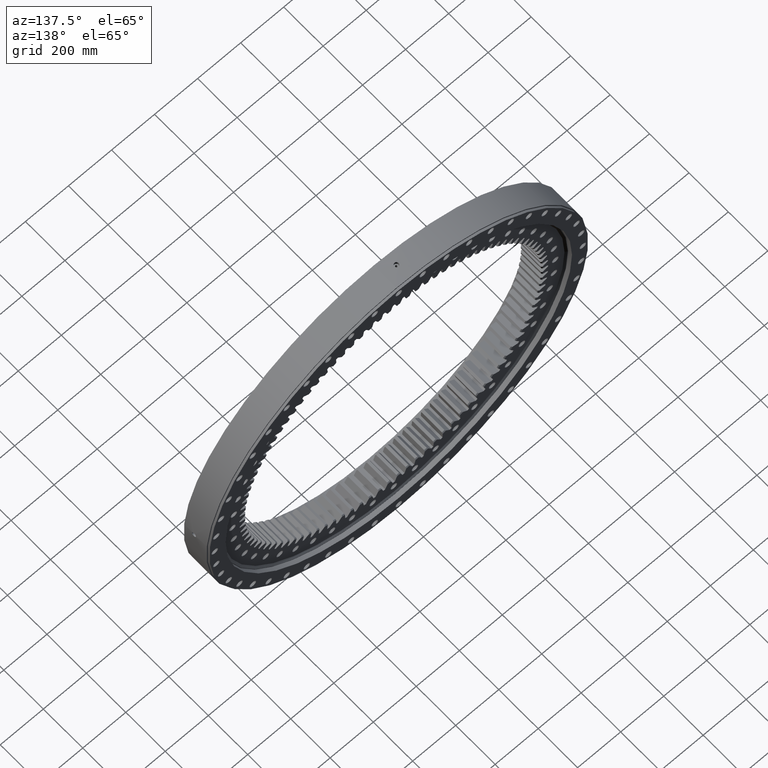
[diagram: clean part render]
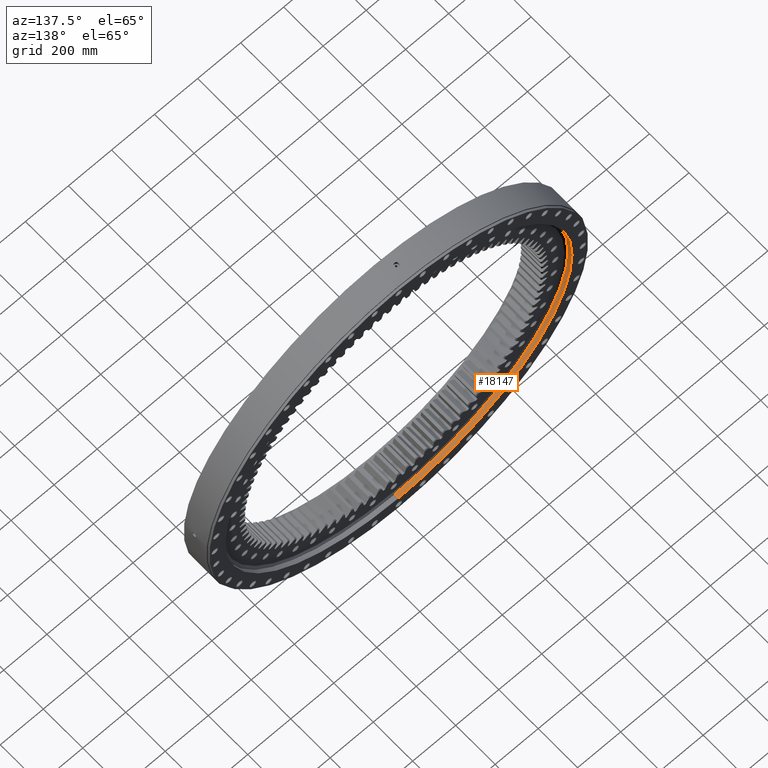
[diagram: same view with one face highlighted and labeled with its STEP entity id]
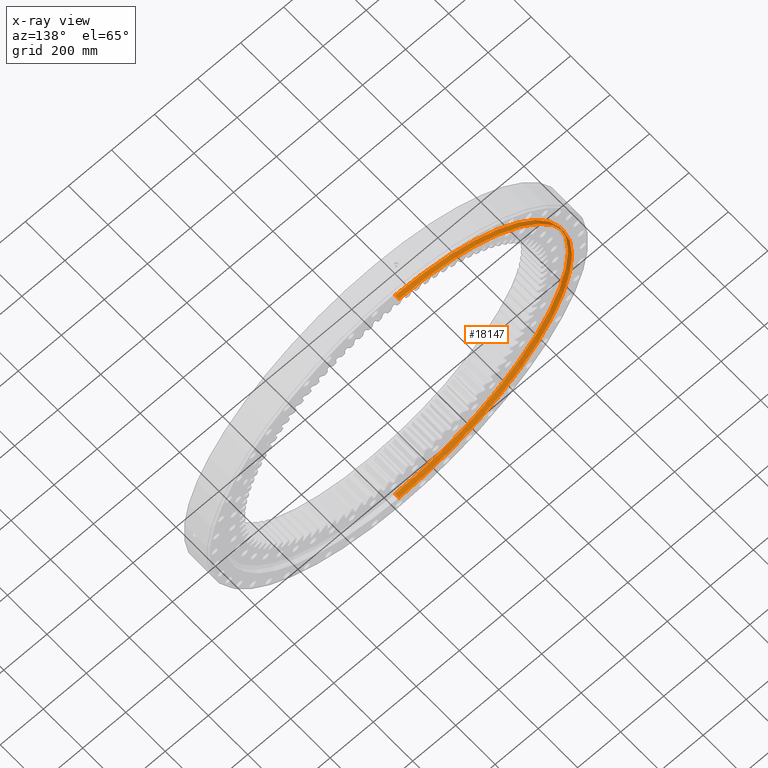
[diagram: x-ray of the same camera — body ghosted, the highlighted face saturated]
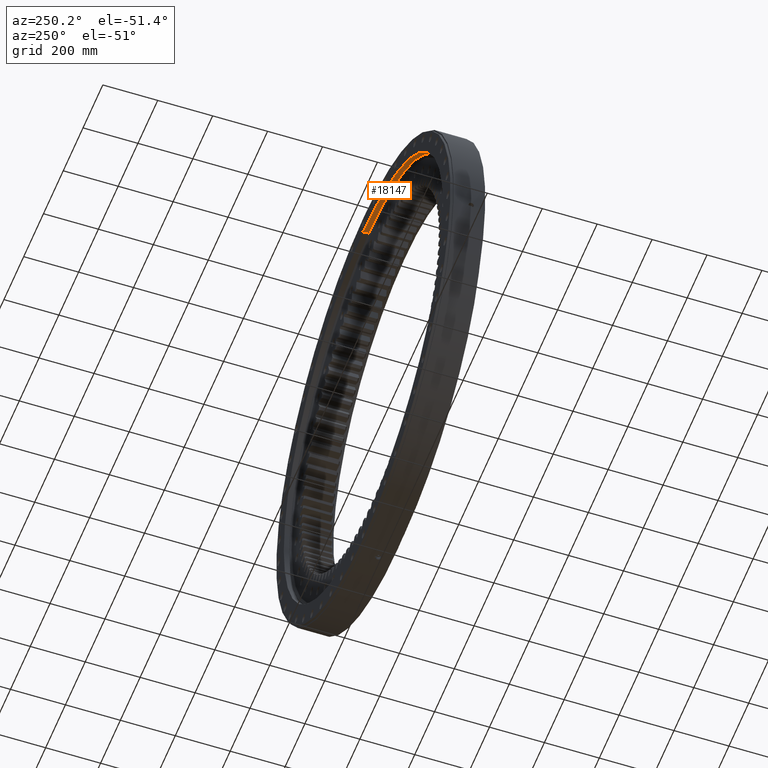
[diagram: same view with one face highlighted and labeled with its STEP entity id]
A machine part, auxiliary view. The second image highlights one B-rep face of the part: STEP entity #18147.
The next image is the same camera in x-ray: the body ghosted, the highlighted face saturated — about 0% of this face is hidden behind the body in this view.
A second angle (auxiliary view) of the same face is appended — the face is thin or edge-on in the first view.
In plain terms, the highlighted cylindrical surface (partial cylindrical patch) has radius 805 mm, axis along (0, -1, -0).
Its self-contained STEP definition (entity closure, byte-faithful):
#4 = CIRCLE ( 'NONE', #30417, 804.9999999999998900 ) ;
#1429 = EDGE_CURVE ( 'NONE', #23458, #15526, #13690, .T. ) ;
#1817 = VECTOR ( 'NONE', #17979, 1000.000000000000000 ) ;
#2163 = EDGE_CURVE ( 'NONE', #23152, #23458, #3056, .T. ) ;
#2623 = DIRECTION ( 'NONE',  ( 1.173697223544192200E-016, -1.000000000000000000, -3.494217355385783800E-017 ) ) ;
#2817 = EDGE_CURVE ( 'NONE', #8082, #15526, #4, .T. ) ;
#2932 = CARTESIAN_POINT ( 'NONE',  ( -1.509025102686205800E-013, 55.05000000000003300, -804.9999999999998900 ) ) ;
#3056 = CIRCLE ( 'NONE', #13790, 804.9999999999998900 ) ;
#3513 = AXIS2_PLACEMENT_3D ( 'NONE', #22014, #2623, #24431 ) ;
#4012 = DIRECTION ( 'NONE',  ( 1.173697223544192200E-016, -1.000000000000000000, -3.494217355385783800E-017 ) ) ;
#4119 = CARTESIAN_POINT ( 'NONE',  ( -6.461203215610778300E-015, 55.05000000000000400, 1.923566654139874200E-015 ) ) ;
#5137 = CYLINDRICAL_SURFACE ( 'NONE', #3513, 804.9999999999998900 ) ;
#6032 = CARTESIAN_POINT ( 'NONE',  ( -1.509025102686205800E-013, 75.00000000000012800, -804.9999999999998900 ) ) ;
#6772 = LINE ( 'NONE', #19119, #1817 ) ;
#6829 = ORIENTED_EDGE ( 'NONE', *, *, #1429, .F. ) ;
#7137 = CARTESIAN_POINT ( 'NONE',  ( 3.588374756458110000E-014, 75.00000000000007100, 804.9999999999998900 ) ) ;
#7177 = EDGE_LOOP ( 'NONE', ( #6829, #9880, #10965, #13271 ) ) ;
#7700 = DIRECTION ( 'NONE',  ( 1.173697223544192200E-016, -1.000000000000000000, -3.494217355385783800E-017 ) ) ;
#8008 = CARTESIAN_POINT ( 'NONE',  ( -1.406692029375159000E-013, -22.16364734299514100, -804.9999999999998900 ) ) ;
#8082 = VERTEX_POINT ( 'NONE', #25108 ) ;
#9880 = ORIENTED_EDGE ( 'NONE', *, *, #2163, .F. ) ;
#10670 = EDGE_CURVE ( 'NONE', #23152, #8082, #6772, .T. ) ;
#10965 = ORIENTED_EDGE ( 'NONE', *, *, #10670, .T. ) ;
#12943 = VECTOR ( 'NONE', #7700, 1000.000000000000000 ) ;
#13271 = ORIENTED_EDGE ( 'NONE', *, *, #2817, .T. ) ;
#13572 = DIRECTION ( 'NONE',  ( 5.551115123125782700E-017, -3.447897592003592100E-017, 1.000000000000000000 ) ) ;
#13688 = DIRECTION ( 'NONE',  ( 1.173697223544192200E-016, -1.000000000000000000, -3.494217355385783800E-017 ) ) ;
#13690 = LINE ( 'NONE', #8008, #12943 ) ;
#13790 = AXIS2_PLACEMENT_3D ( 'NONE', #14266, #13688, #13572 ) ;
#14266 = CARTESIAN_POINT ( 'NONE',  ( -8.802729176581452600E-015, 75.00000000000009900, 2.620663016539341100E-015 ) ) ;
#15526 = VERTEX_POINT ( 'NONE', #2932 ) ;
#17979 = DIRECTION ( 'NONE',  ( 1.173697223544192200E-016, -1.000000000000000000, -3.494217355385783800E-017 ) ) ;
#18047 = FACE_OUTER_BOUND ( 'NONE', #7177, .T. ) ;
#18147 = ADVANCED_FACE ( 'NONE', ( #18047 ), #5137, .F. ) ;
#19119 = CARTESIAN_POINT ( 'NONE',  ( 4.728781787617114800E-014, -22.16364734299519800, 804.9999999999998900 ) ) ;
#22014 = CARTESIAN_POINT ( 'NONE',  ( 2.601341135008604100E-015, -22.16364734299516900, -7.744460120454373600E-016 ) ) ;
#23152 = VERTEX_POINT ( 'NONE', #7137 ) ;
#23458 = VERTEX_POINT ( 'NONE', #6032 ) ;
#24431 = DIRECTION ( 'NONE',  ( 5.551115123125782700E-017, -3.447897592003592100E-017, 1.000000000000000000 ) ) ;
#25108 = CARTESIAN_POINT ( 'NONE',  ( 3.822527352555176700E-014, 55.04999999999997600, 804.9999999999998900 ) ) ;
#30417 = AXIS2_PLACEMENT_3D ( 'NONE', #4119, #4012, #30744 ) ;
#30744 = DIRECTION ( 'NONE',  ( 5.551115123125782700E-017, -3.447897592003592100E-017, 1.000000000000000000 ) ) ;